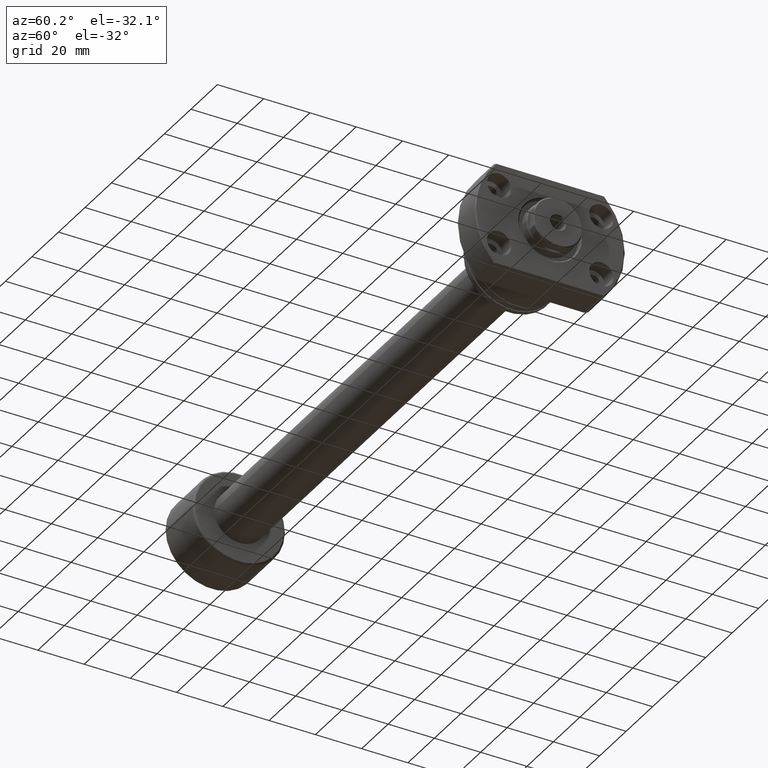
[diagram: clean part render]
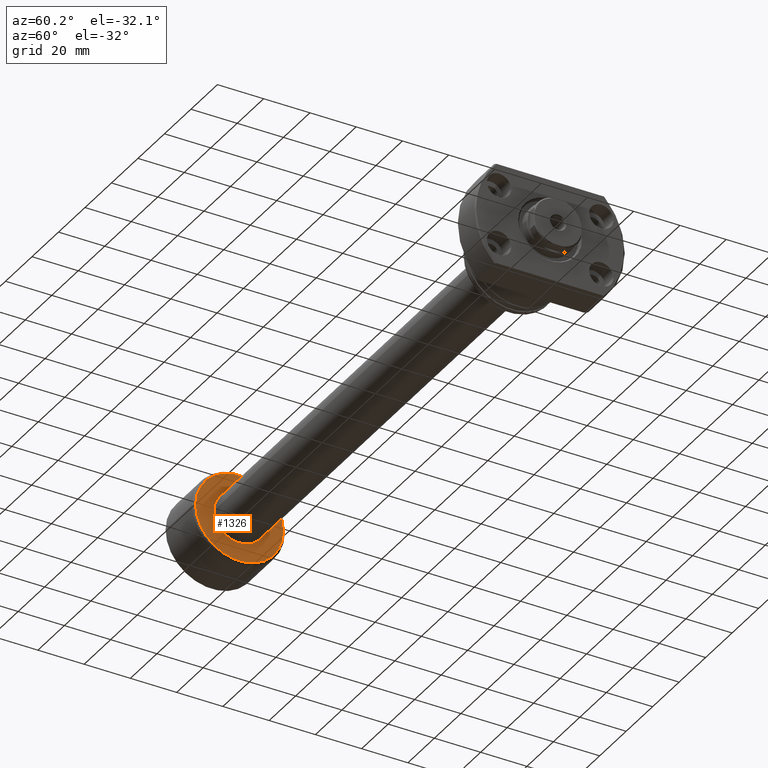
[diagram: same view with one face highlighted and labeled with its STEP entity id]
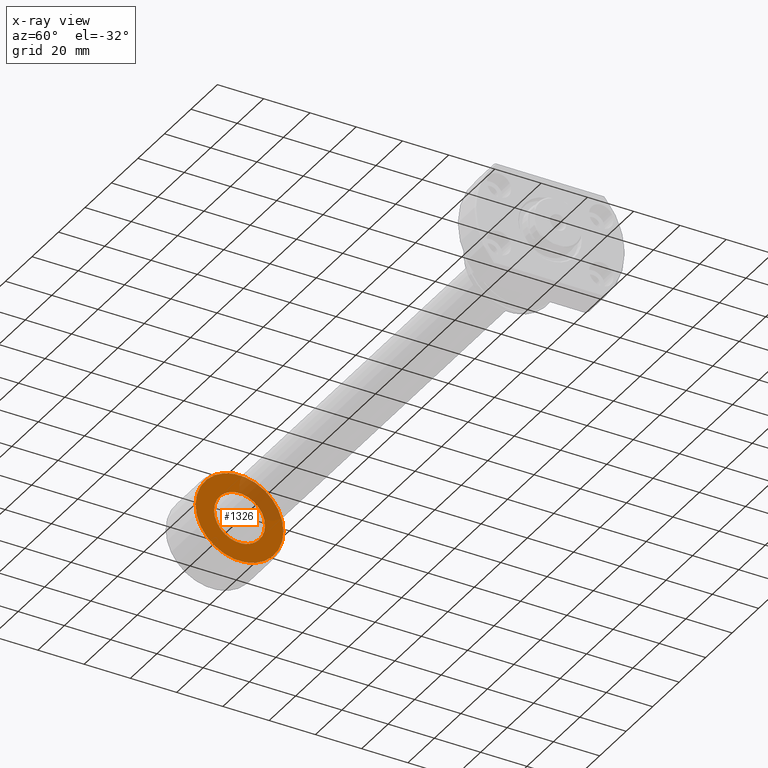
[diagram: x-ray of the same camera — body ghosted, the highlighted face saturated]
A machine part, auxiliary view. The second image highlights one B-rep face of the part: STEP entity #1326.
The next image is the same camera in x-ray: the body ghosted, the highlighted face saturated — about 21% of this face is hidden behind the body in this view.
In plain terms, the highlighted planar face has unit normal (-1, -0, 0).
Its self-contained STEP definition (entity closure, byte-faithful):
#9 = FACE_BOUND ( 'NONE', #130, .T. ) ;
#130 = EDGE_LOOP ( 'NONE', ( #2125, #1444 ) ) ;
#213 = CARTESIAN_POINT ( 'NONE',  ( 22.40000000000000924, -11.00000000000000000, 0.000000000000000000 ) ) ;
#441 = ORIENTED_EDGE ( 'NONE', *, *, #2992, .F. ) ;
#452 = DIRECTION ( 'NONE',  ( -1.000000000000000000, -1.069542322069065801E-17, 0.000000000000000000 ) ) ;
#496 = ORIENTED_EDGE ( 'NONE', *, *, #1895, .F. ) ;
#572 = CARTESIAN_POINT ( 'NONE',  ( 22.40000000000000924, 2.395774801434708725E-16, 0.000000000000000000 ) ) ;
#611 = CARTESIAN_POINT ( 'NONE',  ( 22.40000000000000924, 2.395774801434708725E-16, 0.000000000000000000 ) ) ;
#690 = VERTEX_POINT ( 'NONE', #2686 ) ;
#802 = AXIS2_PLACEMENT_3D ( 'NONE', #1854, #1578, #2058 ) ;
#890 = DIRECTION ( 'NONE',  ( -1.000000000000000000, -1.069542322069065801E-17, -0.000000000000000000 ) ) ;
#933 = VERTEX_POINT ( 'NONE', #2887 ) ;
#954 = EDGE_CURVE ( 'NONE', #3048, #690, #3077, .T. ) ;
#1002 = CARTESIAN_POINT ( 'NONE',  ( 22.40000000000000924, 2.395774801434708725E-16, 0.000000000000000000 ) ) ;
#1102 = DIRECTION ( 'NONE',  ( 0.000000000000000000, -1.000000000000000000, 0.000000000000000000 ) ) ;
#1326 = ADVANCED_FACE ( 'NONE', ( #2431, #9 ), #2963, .F. ) ;
#1373 = DIRECTION ( 'NONE',  ( 0.000000000000000000, -1.000000000000000000, 0.000000000000000000 ) ) ;
#1444 = ORIENTED_EDGE ( 'NONE', *, *, #954, .T. ) ;
#1578 = DIRECTION ( 'NONE',  ( -1.000000000000000000, -1.069542322069065801E-17, -0.000000000000000000 ) ) ;
#1630 = DIRECTION ( 'NONE',  ( 0.000000000000000000, -1.000000000000000000, 0.000000000000000000 ) ) ;
#1793 = DIRECTION ( 'NONE',  ( -1.000000000000000000, -1.069542322069065801E-17, -0.000000000000000000 ) ) ;
#1854 = CARTESIAN_POINT ( 'NONE',  ( 22.40000000000000924, 2.395774801434708725E-16, 0.000000000000000000 ) ) ;
#1895 = EDGE_CURVE ( 'NONE', #2965, #933, #2432, .T. ) ;
#1926 = AXIS2_PLACEMENT_3D ( 'NONE', #611, #2881, #1373 ) ;
#1930 = AXIS2_PLACEMENT_3D ( 'NONE', #213, #452, #1956 ) ;
#1956 = DIRECTION ( 'NONE',  ( 1.069542322069065801E-17, -1.000000000000000000, 0.000000000000000000 ) ) ;
#1990 = CIRCLE ( 'NONE', #802, 11.00000000000000000 ) ;
#2058 = DIRECTION ( 'NONE',  ( 0.000000000000000000, -1.000000000000000000, 0.000000000000000000 ) ) ;
#2125 = ORIENTED_EDGE ( 'NONE', *, *, #2974, .T. ) ;
#2273 = EDGE_LOOP ( 'NONE', ( #496, #441 ) ) ;
#2296 = AXIS2_PLACEMENT_3D ( 'NONE', #572, #1793, #1102 ) ;
#2367 = CARTESIAN_POINT ( 'NONE',  ( 22.40000000000000924, 11.00000000000000000, 1.347111479062094518E-15 ) ) ;
#2431 = FACE_OUTER_BOUND ( 'NONE', #2273, .T. ) ;
#2432 = CIRCLE ( 'NONE', #2964, 19.00000000000000000 ) ;
#2686 = CARTESIAN_POINT ( 'NONE',  ( 22.40000000000000924, -11.00000000000000000, 0.000000000000000000 ) ) ;
#2881 = DIRECTION ( 'NONE',  ( -1.000000000000000000, -1.069542322069065801E-17, -0.000000000000000000 ) ) ;
#2887 = CARTESIAN_POINT ( 'NONE',  ( 22.40000000000000924, 19.00000000000000000, 2.388061258337338939E-15 ) ) ;
#2963 = PLANE ( 'NONE',  #1930 ) ;
#2964 = AXIS2_PLACEMENT_3D ( 'NONE', #1002, #890, #1630 ) ;
#2965 = VERTEX_POINT ( 'NONE', #3036 ) ;
#2974 = EDGE_CURVE ( 'NONE', #690, #3048, #1990, .T. ) ;
#2992 = EDGE_CURVE ( 'NONE', #933, #2965, #3028, .T. ) ;
#3028 = CIRCLE ( 'NONE', #2296, 19.00000000000000000 ) ;
#3036 = CARTESIAN_POINT ( 'NONE',  ( 22.40000000000000924, -19.00000000000000000, 0.000000000000000000 ) ) ;
#3048 = VERTEX_POINT ( 'NONE', #2367 ) ;
#3077 = CIRCLE ( 'NONE', #1926, 11.00000000000000000 ) ;